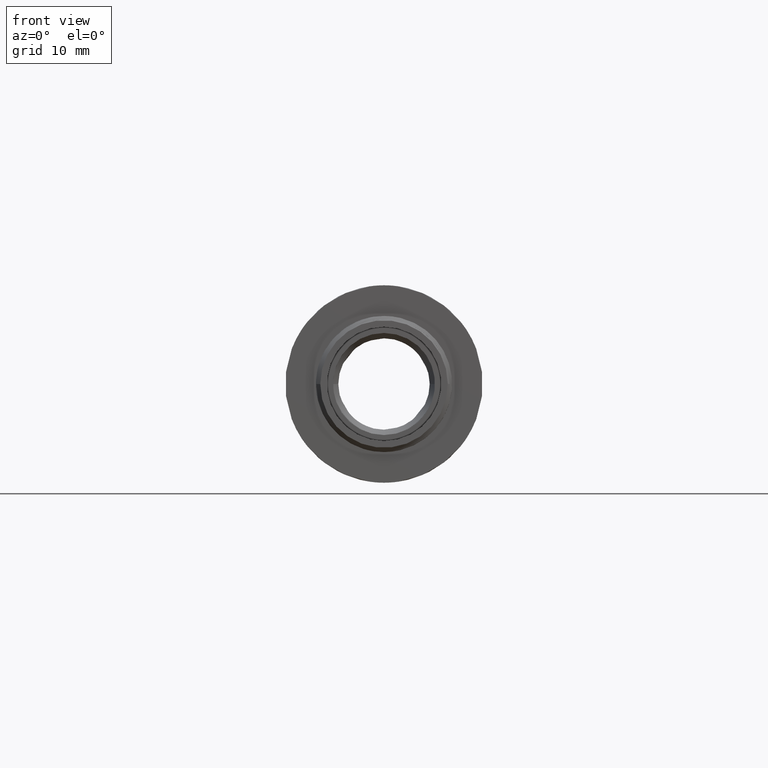
[diagram: clean part render]
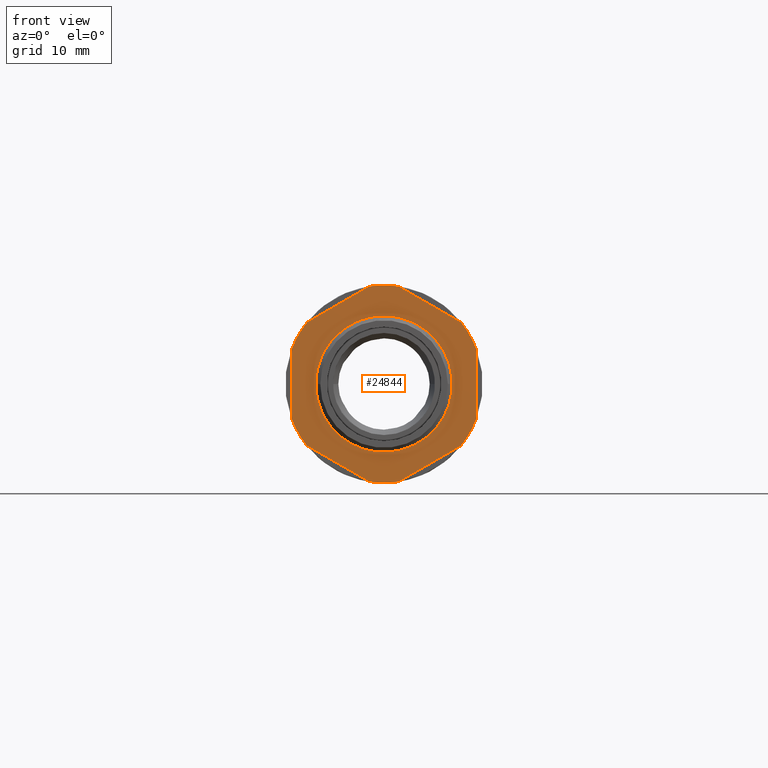
[diagram: same view with one face highlighted and labeled with its STEP entity id]
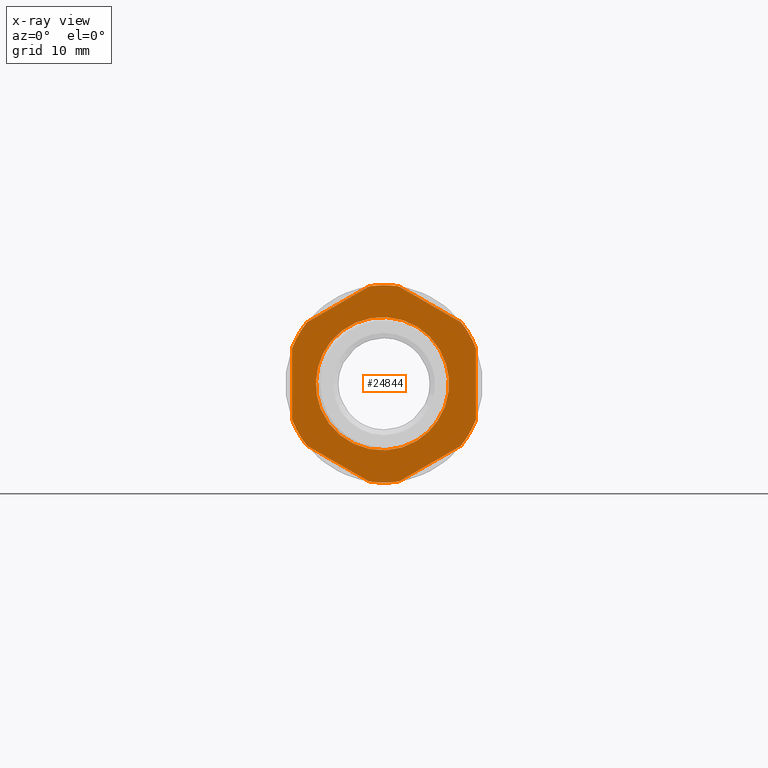
[diagram: x-ray of the same camera — body ghosted, the highlighted face saturated]
A machine part, front view. The second image highlights one B-rep face of the part: STEP entity #24844.
The next image is the same camera in x-ray: the body ghosted, the highlighted face saturated — about 0% of this face is hidden behind the body in this view.
In plain terms, the highlighted planar face has unit normal (0, -1, 0).
Its self-contained STEP definition (entity closure, byte-faithful):
#1621 = FACE_BOUND ( 'NONE', #23715, .T. ) ;
#1646 = FACE_OUTER_BOUND ( 'NONE', #23737, .T. ) ;
#1680 = PLANE ( 'NONE',  #23037 ) ;
#1730 = CARTESIAN_POINT ( 'NONE',  ( 50.00000000000000000, 1.700000000000000200, 0.0000000000000000000 ) ) ;
#1732 = DIRECTION ( 'NONE',  ( 0.0000000000000000000, -1.000000000000000000, 0.0000000000000000000 ) ) ;
#1739 = DIRECTION ( 'NONE',  ( 0.0000000000000000000, -0.0000000000000000000, -1.000000000000000000 ) ) ;
#4907 = CARTESIAN_POINT ( 'NONE',  ( 50.91106816275443900, 1.700000000000000200, 15.06245181910351100 ) ) ;
#4950 = LINE ( 'NONE', #4907, #21170 ) ;
#4992 = DIRECTION ( 'NONE',  ( -0.8660254037844387100, 0.0000000000000000000, 0.4999999999999998900 ) ) ;
#5000 = CARTESIAN_POINT ( 'NONE',  ( 63.50000000000000000, 1.700000000000000200, 6.742217736027215300 ) ) ;
#5002 = DIRECTION ( 'NONE',  ( 0.0000000000000000000, 0.0000000000000000000, 1.000000000000000000 ) ) ;
#5005 = DIRECTION ( 'NONE',  ( 0.0000000000000000000, -1.000000000000000000, 0.0000000000000000000 ) ) ;
#5009 = LINE ( 'NONE', #5000, #21189 ) ;
#5044 = LINE ( 'NONE', #5082, #21142 ) ;
#5056 = CARTESIAN_POINT ( 'NONE',  ( 62.58893183724556800, 1.700000000000000200, -8.320234083076316600 ) ) ;
#5066 = CARTESIAN_POINT ( 'NONE',  ( 50.00000000000045500, 1.700000000000000200, 3.261280134836397300E-013 ) ) ;
#5071 = DIRECTION ( 'NONE',  ( 0.8660254037844387100, 0.0000000000000000000, -0.4999999999999998900 ) ) ;
#5082 = CARTESIAN_POINT ( 'NONE',  ( 49.08893183724556800, 1.700000000000000200, -15.06245181910351100 ) ) ;
#5090 = LINE ( 'NONE', #5056, #21147 ) ;
#5096 = DIRECTION ( 'NONE',  ( 0.8660254037844383700, 0.0000000000000000000, 0.5000000000000004400 ) ) ;
#5100 = DIRECTION ( 'NONE',  ( 0.0000000000000000000, 0.0000000000000000000, -1.000000000000000000 ) ) ;
#5111 = LINE ( 'NONE', #5157, #21335 ) ;
#5157 = CARTESIAN_POINT ( 'NONE',  ( 36.50000000000001400, 1.700000000000000200, -6.742217736027219700 ) ) ;
#5202 = DIRECTION ( 'NONE',  ( 0.0000000000000000000, 0.0000000000000000000, -1.000000000000000000 ) ) ;
#5215 = DIRECTION ( 'NONE',  ( -0.8660254037844387100, 0.0000000000000000000, -0.4999999999999998900 ) ) ;
#5261 = LINE ( 'NONE', #5266, #21301 ) ;
#5266 = CARTESIAN_POINT ( 'NONE',  ( 37.41106816275445400, 1.700000000000000200, 8.320234083076323700 ) ) ;
#5363 = DIRECTION ( 'NONE',  ( 0.0000000000000000000, -1.000000000000000000, 0.0000000000000000000 ) ) ;
#5413 = CARTESIAN_POINT ( 'NONE',  ( 50.00000000000045500, 1.700000000000000200, 3.261280134836397300E-013 ) ) ;
#5421 = DIRECTION ( 'NONE',  ( 0.0000000000000000000, 0.0000000000000000000, -1.000000000000000000 ) ) ;
#5552 = CARTESIAN_POINT ( 'NONE',  ( 50.00000000000045500, 1.700000000000000200, 3.261280134836397300E-013 ) ) ;
#5566 = DIRECTION ( 'NONE',  ( 0.0000000000000000000, -1.000000000000000000, 0.0000000000000000000 ) ) ;
#5582 = DIRECTION ( 'NONE',  ( 0.0000000000000000000, 0.0000000000000000000, -1.000000000000000000 ) ) ;
#5665 = DIRECTION ( 'NONE',  ( 0.0000000000000000000, -1.000000000000000000, 0.0000000000000000000 ) ) ;
#5710 = DIRECTION ( 'NONE',  ( 0.0000000000000000000, 0.0000000000000000000, -1.000000000000000000 ) ) ;
#5764 = CARTESIAN_POINT ( 'NONE',  ( 50.00000000000045500, 1.700000000000000200, 3.261280134836397300E-013 ) ) ;
#7814 = B_SPLINE_CURVE_WITH_KNOTS ( 'NONE', 3,
 ( #12124, #12126, #12143, #12132, #12133, #12113, #12134, #12098, #12140, #12116, #12117, #12138, #12118, #12144, #12136, #12145, #12160, #12192, #12171, #12173, #12175, #12199, #12172, #12189, #12161, #12157, #12195, #12168 ),
 .UNSPECIFIED., .F., .F.,
 ( 4, 2, 2, 2, 2, 2, 2, 2, 2, 2, 2, 2, 2, 4 ),
 ( 2.277271974898168000E-014, 0.001334835041140540300, 0.002669670082258307700, 0.004004505123376075200, 0.005339340164493842700, 0.008009010246729399500, 0.01067868032896495400, 0.01201351537008273100, 0.01334835041120050600, 0.01468318545231828500, 0.01601802049343606400, 0.01735285553455383900, 0.01868769057567161400, 0.02135736065790715800 ),
 .UNSPECIFIED. ) ;
#7815 = B_SPLINE_CURVE_WITH_KNOTS ( 'NONE', 3,
 ( #12452, #12418, #12480, #12482, #12489, #12494, #12473, #12507, #12478, #12474, #12518, #12492, #12488, #12491, #12495, #12484, #12519, #12512, #12496, #12502, #12503, #12477, #12493, #12497, #12483, #12498, #12485, #12479, #12504 ),
 .UNSPECIFIED., .F., .F.,
 ( 4, 2, 2, 2, 2, 2, 2, 2, 2, 2, 2, 1, 2, 2, 4 ),
 ( 0.0000000000000000000, 0.001331764696266757600, 0.002663529392533513900, 0.003995294088800270000, 0.005327058785067027000, 0.006658823481333785700, 0.007990588177600543500, 0.01065411757013406100, 0.01198588226640080900, 0.01331764696266755700, 0.01464941165893430600, 0.01598117635520105200, 0.01731294105146780100, 0.01864470574773454900, 0.02130823514026804500 ),
 .UNSPECIFIED. ) ;
#7852 = B_SPLINE_CURVE_WITH_KNOTS ( 'NONE', 3,
 ( #12153, #12169, #12156, #12149, #12182, #12183, #12184, #12159, #12162, #12194, #12154, #12197, #12198, #12164, #12151 ),
 .UNSPECIFIED., .F., .F.,
 ( 4, 2, 2, 2, 2, 1, 2, 4 ),
 ( 0.0000000000000000000, 0.001084314655499069800, 0.002168629310998139600, 0.004337258621996281800, 0.005421573277495353800, 0.006505887932994424900, 0.007590202588493496900, 0.008674517243992568800 ),
 .UNSPECIFIED. ) ;
#12098 = CARTESIAN_POINT ( 'NONE',  ( 43.21954298666958000, 1.700000000000000000, -7.231861889795691700 ) ) ;
#12110 = DIRECTION ( 'NONE',  ( 0.0000000000000000000, -1.000000000000000000, 0.0000000000000000000 ) ) ;
#12113 = CARTESIAN_POINT ( 'NONE',  ( 42.29757552164595300, 1.700000000000000000, -6.283009837734718800 ) ) ;
#12116 = CARTESIAN_POINT ( 'NONE',  ( 44.61996833450338300, 1.699999999999998000, -8.317994503346364300 ) ) ;
#12117 = CARTESIAN_POINT ( 'NONE',  ( 45.38759815065508700, 1.700000000000000000, -8.746577422524424600 ) ) ;
#12118 = CARTESIAN_POINT ( 'NONE',  ( 47.90309948155614700, 1.700000000000001500, -9.603910075311560500 ) ) ;
#12124 = CARTESIAN_POINT ( 'NONE',  ( 40.69145389612484100, 1.700000000000000200, -3.644048323545737000 ) ) ;
#12126 = CARTESIAN_POINT ( 'NONE',  ( 40.86288541593285800, 1.700000000000000200, -4.055574038345055100 ) ) ;
#12128 = CARTESIAN_POINT ( 'NONE',  ( 50.00000000000045500, 1.700000000000000200, 3.261280134836397300E-013 ) ) ;
#12132 = CARTESIAN_POINT ( 'NONE',  ( 41.51025241641271900, 1.700000000000000200, -5.223546053301020300 ) ) ;
#12133 = CARTESIAN_POINT ( 'NONE',  ( 41.75781314050345100, 1.700000000000000000, -5.588924977293810800 ) ) ;
#12134 = CARTESIAN_POINT ( 'NONE',  ( 42.58978146144293900, 1.699999999999999700, -6.611712255863342800 ) ) ;
#12136 = CARTESIAN_POINT ( 'NONE',  ( 49.66903699938040300, 1.699999999999999700, -9.757914409906424800 ) ) ;
#12138 = CARTESIAN_POINT ( 'NONE',  ( 47.04756426976733500, 1.699999999999999700, -9.396834738825303300 ) ) ;
#12140 = CARTESIAN_POINT ( 'NONE',  ( 43.55946392111235400, 1.699999999999998400, -7.524235228436607400 ) ) ;
#12142 = DIRECTION ( 'NONE',  ( 0.0000000000000000000, 0.0000000000000000000, -1.000000000000000000 ) ) ;
#12143 = CARTESIAN_POINT ( 'NONE',  ( 41.06146420841003000, 1.700000000000000000, -4.454724969910826000 ) ) ;
#12144 = CARTESIAN_POINT ( 'NONE',  ( 49.22094652156498300, 1.700000000000002600, -9.741534995851235800 ) ) ;
#12145 = CARTESIAN_POINT ( 'NONE',  ( 50.55224930690025100, 1.699999999999999700, -9.730057135524488000 ) ) ;
#12149 = CARTESIAN_POINT ( 'NONE',  ( 58.61398452095189500, 1.700000000000000800, -4.133353338155744800 ) ) ;
#12151 = CARTESIAN_POINT ( 'NONE',  ( 59.11310423742972400, 1.700000000000000000, 2.852158328237596400 ) ) ;
#12153 = CARTESIAN_POINT ( 'NONE',  ( 57.88697043850672200, 1.700000000000000000, -5.379761303924957400 ) ) ;
#12154 = CARTESIAN_POINT ( 'NONE',  ( 59.53974728380525500, 1.700000000000002000, 0.7429412410988536200 ) ) ;
#12156 = CARTESIAN_POINT ( 'NONE',  ( 58.27731951874171300, 1.700000000000001100, -4.771467362525700500 ) ) ;
#12157 = CARTESIAN_POINT ( 'NONE',  ( 56.82190856223728300, 1.699999999999999300, -6.789302160943222500 ) ) ;
#12159 = CARTESIAN_POINT ( 'NONE',  ( 59.49743780055132400, 1.700000000000001100, -1.048483435659253600 ) ) ;
#12160 = CARTESIAN_POINT ( 'NONE',  ( 50.98971571708303000, 1.700000000000001500, -9.686089197730806800 ) ) ;
#12161 = CARTESIAN_POINT ( 'NONE',  ( 55.82323765770050300, 1.700000000000000000, -7.659827925968206900 ) ) ;
#12162 = CARTESIAN_POINT ( 'NONE',  ( 59.53048129554034100, 1.700000000000000600, -0.6868427071785907500 ) ) ;
#12164 = CARTESIAN_POINT ( 'NONE',  ( 59.22104760191778200, 1.699999999999998000, 2.507163913974230300 ) ) ;
#12168 = CARTESIAN_POINT ( 'NONE',  ( 57.88697043850672200, 1.700000000000000000, -5.379761303924957400 ) ) ;
#12169 = CARTESIAN_POINT ( 'NONE',  ( 58.09077049638951700, 1.700000000000000200, -5.081200669853929600 ) ) ;
#12171 = CARTESIAN_POINT ( 'NONE',  ( 52.28580648241774800, 1.700000000000000800, -9.435845955879015500 ) ) ;
#12172 = CARTESIAN_POINT ( 'NONE',  ( 54.72616430817289100, 1.700000000000001100, -8.414286309720088400 ) ) ;
#12173 = CARTESIAN_POINT ( 'NONE',  ( 53.13593535112147500, 1.700000000000001500, -9.167924690801184400 ) ) ;
#12175 = CARTESIAN_POINT ( 'NONE',  ( 53.54757925479670900, 1.700000000000000000, -9.005959221107103100 ) ) ;
#12182 = CARTESIAN_POINT ( 'NONE',  ( 58.76461914285181400, 1.699999999999999500, -3.803582750438322600 ) ) ;
#12183 = CARTESIAN_POINT ( 'NONE',  ( 59.15564763663678600, 1.699999999999999300, -2.802020721455451100 ) ) ;
#12184 = CARTESIAN_POINT ( 'NONE',  ( 59.33896030368918400, 1.700000000000001500, -2.113275258293204000 ) ) ;
#12189 = CARTESIAN_POINT ( 'NONE',  ( 55.46568337826929000, 1.700000000000001500, -7.930586794982538400 ) ) ;
#12192 = CARTESIAN_POINT ( 'NONE',  ( 51.85649379961713400, 1.700000000000000400, -9.538979941836625900 ) ) ;
#12194 = CARTESIAN_POINT ( 'NONE',  ( 59.55529637296675800, 1.700000000000001500, 0.02950267062534419800 ) ) ;
#12195 = CARTESIAN_POINT ( 'NONE',  ( 57.40042327309311100, 1.700000000000000400, -6.127468405172993300 ) ) ;
#12197 = CARTESIAN_POINT ( 'NONE',  ( 59.44483332308092800, 1.699999999999999500, 1.450664385987517700 ) ) ;
#12198 = CARTESIAN_POINT ( 'NONE',  ( 59.30940030374257800, 1.699999999999999300, 2.155469569066029000 ) ) ;
#12199 = CARTESIAN_POINT ( 'NONE',  ( 54.34246803227999600, 1.699999999999999700, -8.629215049027955300 ) ) ;
#12203 = DIRECTION ( 'NONE',  ( 0.0000000000000000000, 0.0000000000000000000, -1.000000000000000000 ) ) ;
#12213 = CARTESIAN_POINT ( 'NONE',  ( 50.00315647922916200, 1.700000000000000200, 0.001797943620259929600 ) ) ;
#12218 = DIRECTION ( 'NONE',  ( 0.0000000000000000000, -1.000000000000000000, 0.0000000000000000000 ) ) ;
#12222 = DIRECTION ( 'NONE',  ( 0.0000000000000000000, 0.0000000000000000000, -1.000000000000000000 ) ) ;
#12232 = CARTESIAN_POINT ( 'NONE',  ( 50.00000000000045500, 1.700000000000000200, 3.261280134836397300E-013 ) ) ;
#12253 = DIRECTION ( 'NONE',  ( 0.0000000000000000000, -1.000000000000000000, 0.0000000000000000000 ) ) ;
#12320 = DIRECTION ( 'NONE',  ( 0.0000000000000000000, -1.000000000000000000, 0.0000000000000000000 ) ) ;
#12358 = DIRECTION ( 'NONE',  ( 0.0000000000000000000, 0.0000000000000000000, -1.000000000000000000 ) ) ;
#12361 = CARTESIAN_POINT ( 'NONE',  ( 50.00000000000045500, 1.700000000000000200, 3.261280134836397300E-013 ) ) ;
#12371 = DIRECTION ( 'NONE',  ( 0.0000000000000000000, -1.000000000000000000, 0.0000000000000000000 ) ) ;
#12390 = DIRECTION ( 'NONE',  ( 0.0000000000000000000, 0.0000000000000000000, -1.000000000000000000 ) ) ;
#12416 = CARTESIAN_POINT ( 'NONE',  ( 50.00000000000045500, 1.700000000000000200, 3.261280134836397300E-013 ) ) ;
#12418 = CARTESIAN_POINT ( 'NONE',  ( 58.98983591154959800, 1.700000000000000200, 3.279598143648772000 ) ) ;
#12452 = CARTESIAN_POINT ( 'NONE',  ( 59.11310423742972400, 1.700000000000000000, 2.852158328237596400 ) ) ;
#12473 = CARTESIAN_POINT ( 'NONE',  ( 57.54510591274428300, 1.700000000000002400, 5.996475756437162000 ) ) ;
#12474 = CARTESIAN_POINT ( 'NONE',  ( 56.01690153999952300, 1.699999999999992400, 7.587703834684425900 ) ) ;
#12477 = CARTESIAN_POINT ( 'NONE',  ( 47.30338393380729700, 1.699999999999999100, 9.505074200983022700 ) ) ;
#12478 = CARTESIAN_POINT ( 'NONE',  ( 56.66881410790326600, 1.699999999999991700, 6.996128968985855700 ) ) ;
#12479 = CARTESIAN_POINT ( 'NONE',  ( 42.73786062362228900, 1.700000000000000400, 6.903852375931833800 ) ) ;
#12480 = CARTESIAN_POINT ( 'NONE',  ( 58.83707283489683000, 1.700000000000000800, 3.697359049312518100 ) ) ;
#12482 = CARTESIAN_POINT ( 'NONE',  ( 58.47473134600026900, 1.700000000000000800, 4.508424455512694900 ) ) ;
#12483 = CARTESIAN_POINT ( 'NONE',  ( 44.86633542753892800, 1.700000000000000400, 8.507526011920296200 ) ) ;
#12484 = CARTESIAN_POINT ( 'NONE',  ( 51.24557557525880500, 1.700000000000002200, 9.718758330768171300 ) ) ;
#12485 = CARTESIAN_POINT ( 'NONE',  ( 43.39669198695688100, 1.700000000000000800, 7.513339961566713600 ) ) ;
#12488 = CARTESIAN_POINT ( 'NONE',  ( 54.56520924615455200, 1.700000000000000600, 8.583531039954257500 ) ) ;
#12489 = CARTESIAN_POINT ( 'NONE',  ( 58.26746239691851100, 1.700000000000004600, 4.896882929069748900 ) ) ;
#12491 = CARTESIAN_POINT ( 'NONE',  ( 53.37731039190125400, 1.700000000000001300, 9.179703752538770800 ) ) ;
#12492 = CARTESIAN_POINT ( 'NONE',  ( 54.94813988843845500, 1.699999999999997500, 8.357169422029251400 ) ) ;
#12493 = CARTESIAN_POINT ( 'NONE',  ( 46.45792388817551500, 1.699999999999999300, 9.264002816607773000 ) ) ;
#12494 = CARTESIAN_POINT ( 'NONE',  ( 57.80265182670186900, 1.700000000000004400, 5.640909983778802200 ) ) ;
#12495 = CARTESIAN_POINT ( 'NONE',  ( 52.54732014727690600, 1.700000000000002400, 9.463265710555660300 ) ) ;
#12496 = CARTESIAN_POINT ( 'NONE',  ( 49.48629287735244000, 1.699999999999994400, 9.820451523159242400 ) ) ;
#12497 = CARTESIAN_POINT ( 'NONE',  ( 45.65199374384739200, 1.700000000000000000, 8.913757775297945300 ) ) ;
#12498 = CARTESIAN_POINT ( 'NONE',  ( 44.48458583295589400, 1.700000000000001300, 8.276435351101033800 ) ) ;
#12502 = CARTESIAN_POINT ( 'NONE',  ( 48.60991391643698700, 1.699999999999994200, 9.753415709706246200 ) ) ;
#12503 = CARTESIAN_POINT ( 'NONE',  ( 48.16917354787153700, 1.699999999999999500, 9.689999395854181700 ) ) ;
#12504 = CARTESIAN_POINT ( 'NONE',  ( 42.17057880341739900, 1.700000000000000200, 6.218768826001423600 ) ) ;
#12507 = CARTESIAN_POINT ( 'NONE',  ( 56.97872554390746600, 1.700000000000002400, 6.674052797414620200 ) ) ;
#12512 = CARTESIAN_POINT ( 'NONE',  ( 49.92487840623240900, 1.700000000000011300, 9.824920381236770700 ) ) ;
#12518 = CARTESIAN_POINT ( 'NONE',  ( 55.67273028341298200, 1.699999999999998400, 7.859864694524034700 ) ) ;
#12519 = CARTESIAN_POINT ( 'NONE',  ( 50.80285895690641200, 1.700000000000011700, 9.774484046791034300 ) ) ;
#13838 = CARTESIAN_POINT ( 'NONE',  ( 38.66742430504447000, 1.700000000000000200, 9.045591640025479700 ) ) ;
#14865 = CARTESIAN_POINT ( 'NONE',  ( 47.83257569495646800, 1.700000000000000200, 14.33709426215487100 ) ) ;
#14925 = CARTESIAN_POINT ( 'NONE',  ( 38.66742430504544400, 1.700000000000000200, -9.045591640026058800 ) ) ;
#15357 = CARTESIAN_POINT ( 'NONE',  ( 36.50000000000000700, 1.700000000000000200, 5.291502622128386500 ) ) ;
#15416 = CARTESIAN_POINT ( 'NONE',  ( 36.50000000000001400, 1.700000000000000200, -5.291502622127738100 ) ) ;
#18762 = VERTEX_POINT ( 'NONE', #33347 ) ;
#18763 = VERTEX_POINT ( 'NONE', #33369 ) ;
#18764 = VERTEX_POINT ( 'NONE', #33319 ) ;
#18795 = VERTEX_POINT ( 'NONE', #33344 ) ;
#18803 = VERTEX_POINT ( 'NONE', #33364 ) ;
#18819 = VERTEX_POINT ( 'NONE', #33337 ) ;
#19027 = ORIENTED_EDGE ( 'NONE', *, *, #25709, .F. ) ;
#19029 = ORIENTED_EDGE ( 'NONE', *, *, #25123, .T. ) ;
#19030 = ORIENTED_EDGE ( 'NONE', *, *, #25742, .F. ) ;
#19032 = ORIENTED_EDGE ( 'NONE', *, *, #25074, .T. ) ;
#19034 = ORIENTED_EDGE ( 'NONE', *, *, #25156, .T. ) ;
#19042 = ORIENTED_EDGE ( 'NONE', *, *, #25110, .T. ) ;
#19043 = ORIENTED_EDGE ( 'NONE', *, *, #25701, .T. ) ;
#19045 = ORIENTED_EDGE ( 'NONE', *, *, #25096, .T. ) ;
#19058 = ORIENTED_EDGE ( 'NONE', *, *, #25080, .T. ) ;
#19061 = ORIENTED_EDGE ( 'NONE', *, *, #25712, .T. ) ;
#19068 = ORIENTED_EDGE ( 'NONE', *, *, #25064, .T. ) ;
#19069 = ORIENTED_EDGE ( 'NONE', *, *, #25727, .T. ) ;
#19076 = ORIENTED_EDGE ( 'NONE', *, *, #25706, .F. ) ;
#19083 = ORIENTED_EDGE ( 'NONE', *, *, #25150, .T. ) ;
#19092 = ORIENTED_EDGE ( 'NONE', *, *, #25075, .T. ) ;
#19119 = ORIENTED_EDGE ( 'NONE', *, *, #25720, .T. ) ;
#19120 = ORIENTED_EDGE ( 'NONE', *, *, #25702, .F. ) ;
#19137 = ORIENTED_EDGE ( 'NONE', *, *, #25081, .T. ) ;
#21142 = VECTOR ( 'NONE', #5071, 1000.000000000000000 ) ;
#21147 = VECTOR ( 'NONE', #5096, 1000.000000000000000 ) ;
#21148 = CIRCLE ( 'NONE', #21152, 14.50000000000000500 ) ;
#21152 = AXIS2_PLACEMENT_3D ( 'NONE', #5066, #5005, #5100 ) ;
#21170 = VECTOR ( 'NONE', #4992, 1000.000000000000000 ) ;
#21189 = VECTOR ( 'NONE', #5002, 1000.000000000000000 ) ;
#21221 = CIRCLE ( 'NONE', #21223, 14.50000000000000500 ) ;
#21223 = AXIS2_PLACEMENT_3D ( 'NONE', #5413, #5363, #5421 ) ;
#21301 = VECTOR ( 'NONE', #5215, 1000.000000000000000 ) ;
#21335 = VECTOR ( 'NONE', #5202, 1000.000000000000000 ) ;
#21389 = CIRCLE ( 'NONE', #21417, 14.50000000000000500 ) ;
#21402 = AXIS2_PLACEMENT_3D ( 'NONE', #5552, #5566, #5582 ) ;
#21406 = CIRCLE ( 'NONE', #21402, 14.50000000000000500 ) ;
#21417 = AXIS2_PLACEMENT_3D ( 'NONE', #5764, #5665, #5710 ) ;
#23037 = AXIS2_PLACEMENT_3D ( 'NONE', #1730, #1732, #1739 ) ;
#23592 = CIRCLE ( 'NONE', #23601, 14.50000000000000500 ) ;
#23601 = AXIS2_PLACEMENT_3D ( 'NONE', #12128, #12110, #12142 ) ;
#23651 = CIRCLE ( 'NONE', #23675, 14.50000000000000500 ) ;
#23655 = AXIS2_PLACEMENT_3D ( 'NONE', #12361, #12320, #12358 ) ;
#23659 = CIRCLE ( 'NONE', #23668, 9.999999999999998200 ) ;
#23666 = CIRCLE ( 'NONE', #23655, 14.50000000000000500 ) ;
#23668 = AXIS2_PLACEMENT_3D ( 'NONE', #12213, #12218, #12203 ) ;
#23671 = AXIS2_PLACEMENT_3D ( 'NONE', #12232, #12253, #12222 ) ;
#23673 = CIRCLE ( 'NONE', #23671, 14.50000000000000500 ) ;
#23675 = AXIS2_PLACEMENT_3D ( 'NONE', #12416, #12371, #12390 ) ;
#23715 = EDGE_LOOP ( 'NONE', ( #19120, #19027, #19030, #19076 ) ) ;
#23737 = EDGE_LOOP ( 'NONE', ( #19092, #19029, #19119, #19058, #19061, #19032, #19043, #19068, #19069, #19034, #19042, #19083, #19045, #19137 ) ) ;
#23848 = VERTEX_POINT ( 'NONE', #33577 ) ;
#23981 = VERTEX_POINT ( 'NONE', #33719 ) ;
#24008 = VERTEX_POINT ( 'NONE', #33731 ) ;
#24076 = VERTEX_POINT ( 'NONE', #33695 ) ;
#24111 = VERTEX_POINT ( 'NONE', #33754 ) ;
#24169 = VERTEX_POINT ( 'NONE', #33746 ) ;
#24171 = VERTEX_POINT ( 'NONE', #33694 ) ;
#24844 = ADVANCED_FACE ( 'NONE', ( #1621, #1646 ), #1680, .T. ) ;
#25064 = EDGE_CURVE ( 'NONE', #24169, #24171, #4950, .T. ) ;
#25074 = EDGE_CURVE ( 'NONE', #18803, #24111, #5009, .T. ) ;
#25075 = EDGE_CURVE ( 'NONE', #31264, #23848, #5044, .T. ) ;
#25080 = EDGE_CURVE ( 'NONE', #24008, #18764, #5090, .T. ) ;
#25081 = EDGE_CURVE ( 'NONE', #31647, #31264, #21148, .T. ) ;
#25096 = EDGE_CURVE ( 'NONE', #31482, #31647, #5111, .T. ) ;
#25110 = EDGE_CURVE ( 'NONE', #31152, #31297, #5261, .T. ) ;
#25123 = EDGE_CURVE ( 'NONE', #23848, #23981, #21221, .T. ) ;
#25150 = EDGE_CURVE ( 'NONE', #31297, #31482, #21406, .T. ) ;
#25156 = EDGE_CURVE ( 'NONE', #24076, #31152, #21389, .T. ) ;
#25701 = EDGE_CURVE ( 'NONE', #24111, #24169, #23592, .T. ) ;
#25702 = EDGE_CURVE ( 'NONE', #18762, #18819, #7814, .T. ) ;
#25706 = EDGE_CURVE ( 'NONE', #18819, #18763, #7852, .T. ) ;
#25709 = EDGE_CURVE ( 'NONE', #18795, #18762, #23659, .T. ) ;
#25712 = EDGE_CURVE ( 'NONE', #18764, #18803, #23673, .T. ) ;
#25720 = EDGE_CURVE ( 'NONE', #23981, #24008, #23666, .T. ) ;
#25727 = EDGE_CURVE ( 'NONE', #24171, #24076, #23651, .T. ) ;
#25742 = EDGE_CURVE ( 'NONE', #18763, #18795, #7815, .T. ) ;
#31152 = VERTEX_POINT ( 'NONE', #14865 ) ;
#31264 = VERTEX_POINT ( 'NONE', #14925 ) ;
#31297 = VERTEX_POINT ( 'NONE', #13838 ) ;
#31482 = VERTEX_POINT ( 'NONE', #15357 ) ;
#31647 = VERTEX_POINT ( 'NONE', #15416 ) ;
#33319 = CARTESIAN_POINT ( 'NONE',  ( 61.33257569495621900, 1.700000000000000200, -9.045591640025110200 ) ) ;
#33337 = CARTESIAN_POINT ( 'NONE',  ( 57.88697043850672200, 1.700000000000000000, -5.379761303924957400 ) ) ;
#33344 = CARTESIAN_POINT ( 'NONE',  ( 42.17057880341739900, 1.700000000000000200, 6.218768826001423600 ) ) ;
#33347 = CARTESIAN_POINT ( 'NONE',  ( 40.69145389612484100, 1.700000000000000200, -3.644048323545737000 ) ) ;
#33364 = CARTESIAN_POINT ( 'NONE',  ( 63.50000000000000000, 1.700000000000000200, -5.291502622130027900 ) ) ;
#33369 = CARTESIAN_POINT ( 'NONE',  ( 59.11310423742972400, 1.700000000000000000, 2.852158328237596400 ) ) ;
#33577 = CARTESIAN_POINT ( 'NONE',  ( 47.83257569495496100, 1.700000000000000200, -14.33709426215399100 ) ) ;
#33694 = CARTESIAN_POINT ( 'NONE',  ( 52.16742430504319100, 1.700000000000000200, 14.33709426215505900 ) ) ;
#33695 = CARTESIAN_POINT ( 'NONE',  ( 50.00000000000045500, 1.700000000000000200, 14.50000000000033200 ) ) ;
#33719 = CARTESIAN_POINT ( 'NONE',  ( 50.00000000000045500, 1.700000000000000200, -14.49999999999968000 ) ) ;
#33731 = CARTESIAN_POINT ( 'NONE',  ( 52.16742430504475400, 1.700000000000000200, -14.33709426215417100 ) ) ;
#33746 = CARTESIAN_POINT ( 'NONE',  ( 61.33257569495719300, 1.700000000000000200, 9.045591640024540000 ) ) ;
#33754 = CARTESIAN_POINT ( 'NONE',  ( 63.50000000000000000, 1.700000000000000200, 5.291502622130682500 ) ) ;